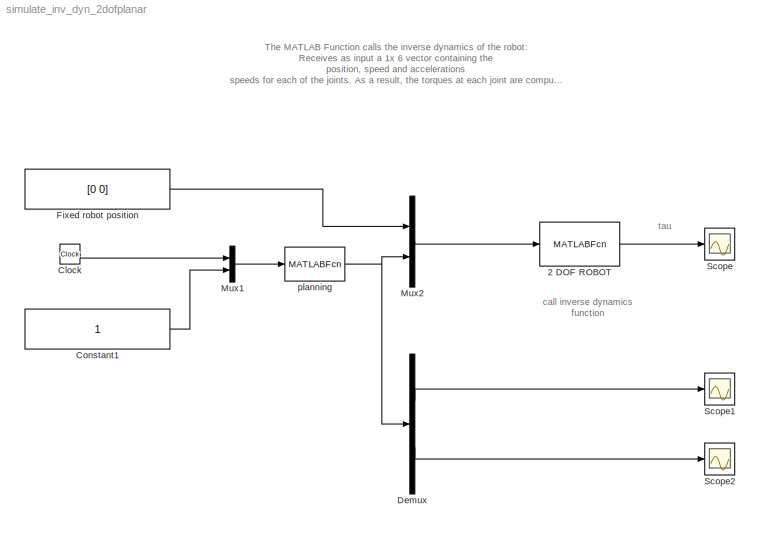
MODEL simulate_inv_dyn_2dofplanar
KIND model
BLOCK [MATLABFcn] 2 DOF ROBOT
  MATLABFcn = call_inverse_dynamics(u)
  OutputDimensions = 2
  Ports = [1, 1]
  SID = 3
BLOCK [Clock] Clock
  SID = 208
BLOCK [Constant] Constant1
  SID = 213
BLOCK [Demux] Demux
  DisplayOption = bar
  Outputs = 2
  Ports = [1, 2]
  SID = 216
BLOCK [Constant] Fixed robot position
  SID = 211
  Value = [0 0]
BLOCK [Mux] Mux1
  DisplayOption = bar
  Inputs = 2
  Ports = [2, 1]
  SID = 214
BLOCK [Mux] Mux2
  DisplayOption = bar
  Inputs = 2
  Ports = [2, 1]
  SID = 210
BLOCK [Scope] Scope
  Floating = off
  LimitDataPoints = off
  NumInputPorts = 1
  Ports = [1]
  SID = 212
  YMax = 200
  YMin = -500
BLOCK [Scope] Scope1
  Floating = off
  LimitDataPoints = off
  NumInputPorts = 1
  Ports = [1]
  SID = 215
  SaveName = ScopeData1
  YMax = 1.8326
  YMin = 1.65806
BLOCK [Scope] Scope2
  Floating = off
  LimitDataPoints = off
  NumInputPorts = 1
  Ports = [1]
  SID = 217
  SaveName = ScopeData2
  YMax = 200
  YMin = -500
BLOCK [MATLABFcn] planning
  MATLABFcn = trapezoidal_references
  OutputDimensions = 4
  Ports = [1, 1]
  SID = 209
ANNOTATION (root): \nThe MATLAB Function calls the inverse dynamics of the robot: \nReceives as input a 1x 6 vector containing the \nposition, speed and accelerations\nspeeds for each of the joints. As a result, the torques at each joint are computed. \n
ANNOTATION (root): call inverse dynamics\n function
ANNOTATION (root): tau
LINE 2 DOF ROBOT:1 -> Scope:1
LINE Clock:1 -> Mux1:1
LINE Constant1:1 -> Mux1:2
LINE Demux:1 -> Scope1:1
LINE Demux:2 -> Scope2:1
LINE Fixed robot position:1 -> Mux2:1
LINE Mux1:1 -> planning:1
LINE Mux2:1 -> 2 DOF ROBOT:1
NET planning:1 -> Demux:1, Mux2:2
note: NET lines group one-source signal fan-out (src -> all destinations, sorted); 1:1 wires keep LINE
